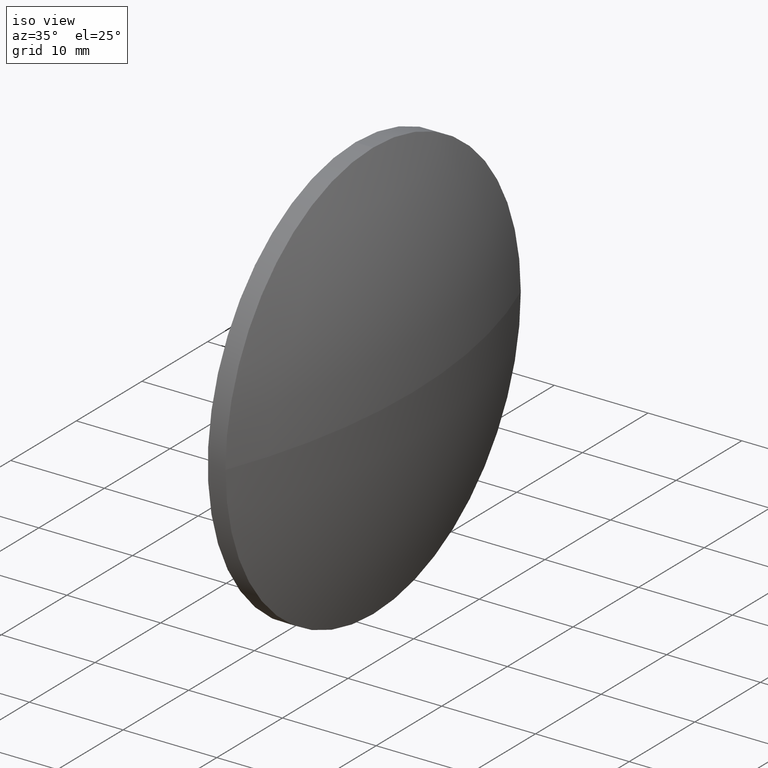
[diagram: clean part render]
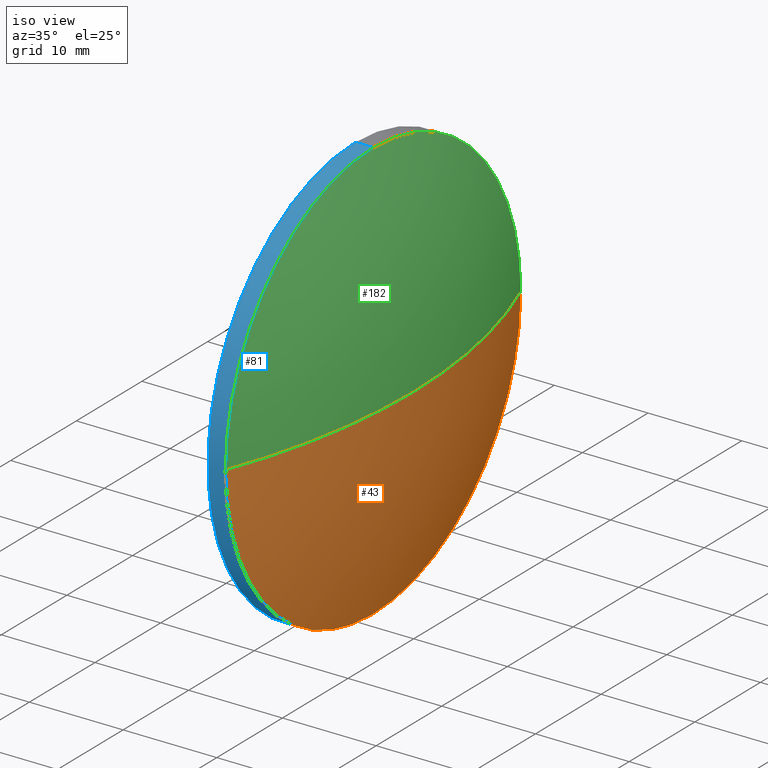
[diagram: same view with three faces highlighted in distinct colors, each labeled with its STEP entity id]
A machine part, iso view with three faces highlighted in distinct colors.
Their STEP definitions:

[orange] entity #43 — the highlighted spherical surface has radius 62.2297 mm.
#1 = ORIENTED_EDGE ( 'NONE', *, *, #91, .T. ) ;
#4 = ORIENTED_EDGE ( 'NONE', *, *, #173, .F. ) ;
#7 = CARTESIAN_POINT ( 'NONE',  ( 449.5635203188954800, 60.46347484045995900, 0.0000000000000000000 ) ) ;
#8 = AXIS2_PLACEMENT_3D ( 'NONE', #34, #104, #11 ) ;
#11 = DIRECTION ( 'NONE',  ( 1.000000000000000000, 0.0000000000000000000, 0.0000000000000000000 ) ) ;
#21 = CARTESIAN_POINT ( 'NONE',  ( 387.3338172310093900, 60.46347484045995200, 0.0000000000000000000 ) ) ;
#34 = CARTESIAN_POINT ( 'NONE',  ( 387.3338172310093900, 60.46347484045995200, 0.0000000000000000000 ) ) ;
#40 = DIRECTION ( 'NONE',  ( 0.0000000000000000000, 1.224646799147353200E-016, -1.000000000000000000 ) ) ;
#42 = CARTESIAN_POINT ( 'NONE',  ( 387.3338172310093900, 60.46347484045995200, 0.0000000000000000000 ) ) ;
#43 = ADVANCED_FACE ( 'NONE', ( #111 ), #65, .T. ) ;
#48 = AXIS2_PLACEMENT_3D ( 'NONE', #42, #40, #153 ) ;
#51 = CIRCLE ( 'NONE', #48, 62.22970308788607200 ) ;
#54 = EDGE_LOOP ( 'NONE', ( #4, #1, #76, #126 ) ) ;
#61 = DIRECTION ( 'NONE',  ( -0.0000000000000000000, 0.0000000000000000000, -1.000000000000000000 ) ) ;
#65 = SPHERICAL_SURFACE ( 'NONE', #121, 62.22970308788606500 ) ;
#66 = CARTESIAN_POINT ( 'NONE',  ( 445.3535203188954500, 60.46347484045998000, 0.0000000000000000000 ) ) ;
#69 = CARTESIAN_POINT ( 'NONE',  ( 445.3535203188954500, 60.46347484045998000, 0.0000000000000000000 ) ) ;
#76 = ORIENTED_EDGE ( 'NONE', *, *, #138, .F. ) ;
#78 = CARTESIAN_POINT ( 'NONE',  ( 445.3535203188954500, 37.96347484045995900, -2.755455298081544000E-015 ) ) ;
#83 = VERTEX_POINT ( 'NONE', #176 ) ;
#85 = DIRECTION ( 'NONE',  ( 0.0000000000000000000, 0.0000000000000000000, 1.000000000000000000 ) ) ;
#91 = EDGE_CURVE ( 'NONE', #92, #105, #51, .T. ) ;
#92 = VERTEX_POINT ( 'NONE', #7 ) ;
#103 = CIRCLE ( 'NONE', #131, 22.50000000000000700 ) ;
#104 = DIRECTION ( 'NONE',  ( -0.0000000000000000000, 0.0000000000000000000, 1.000000000000000000 ) ) ;
#105 = VERTEX_POINT ( 'NONE', #78 ) ;
#111 = FACE_OUTER_BOUND ( 'NONE', #54, .T. ) ;
#113 = CARTESIAN_POINT ( 'NONE',  ( 445.3535203188954500, 60.46347484045998000, -22.50000000000000700 ) ) ;
#119 = VERTEX_POINT ( 'NONE', #113 ) ;
#121 = AXIS2_PLACEMENT_3D ( 'NONE', #21, #61, #123 ) ;
#123 = DIRECTION ( 'NONE',  ( 0.0000000000000000000, 1.000000000000000000, 0.0000000000000000000 ) ) ;
#126 = ORIENTED_EDGE ( 'NONE', *, *, #161, .F. ) ;
#127 = AXIS2_PLACEMENT_3D ( 'NONE', #66, #164, #85 ) ;
#131 = AXIS2_PLACEMENT_3D ( 'NONE', #69, #167, #143 ) ;
#134 = CIRCLE ( 'NONE', #127, 22.50000000000000700 ) ;
#138 = EDGE_CURVE ( 'NONE', #119, #105, #103, .T. ) ;
#143 = DIRECTION ( 'NONE',  ( 0.0000000000000000000, 0.0000000000000000000, 1.000000000000000000 ) ) ;
#153 = DIRECTION ( 'NONE',  ( 0.0000000000000000000, 1.000000000000000000, 1.224646799147353000E-016 ) ) ;
#154 = CIRCLE ( 'NONE', #8, 62.22970308788605800 ) ;
#161 = EDGE_CURVE ( 'NONE', #83, #119, #134, .T. ) ;
#164 = DIRECTION ( 'NONE',  ( -1.000000000000000000, -0.0000000000000000000, -0.0000000000000000000 ) ) ;
#167 = DIRECTION ( 'NONE',  ( -1.000000000000000000, -0.0000000000000000000, -0.0000000000000000000 ) ) ;
#173 = EDGE_CURVE ( 'NONE', #92, #83, #154, .T. ) ;
#176 = CARTESIAN_POINT ( 'NONE',  ( 445.3535203188954500, 82.96347484045998000, 0.0000000000000000000 ) ) ;

[blue] entity #81 — the highlighted cylindrical surface (partial cylindrical patch) has radius 22.5 mm, axis along (-1, -0, -0).
#6 = CARTESIAN_POINT ( 'NONE',  ( 443.4635203188954600, 60.46347484045998000, 22.50000000000000700 ) ) ;
#12 = AXIS2_PLACEMENT_3D ( 'NONE', #96, #124, #112 ) ;
#13 = VERTEX_POINT ( 'NONE', #6 ) ;
#19 = ORIENTED_EDGE ( 'NONE', *, *, #38, .T. ) ;
#22 = DIRECTION ( 'NONE',  ( -1.000000000000000000, -0.0000000000000000000, -0.0000000000000000000 ) ) ;
#28 = VECTOR ( 'NONE', #22, 1000.000000000000000 ) ;
#29 = EDGE_LOOP ( 'NONE', ( #110, #36, #37, #19, #185 ) ) ;
#30 = DIRECTION ( 'NONE',  ( 0.0000000000000000000, 0.0000000000000000000, 1.000000000000000000 ) ) ;
#36 = ORIENTED_EDGE ( 'NONE', *, *, #138, .T. ) ;
#37 = ORIENTED_EDGE ( 'NONE', *, *, #158, .T. ) ;
#38 = EDGE_CURVE ( 'NONE', #95, #13, #71, .T. ) ;
#45 = CARTESIAN_POINT ( 'NONE',  ( 445.3535203188954500, 60.46347484045998000, 22.50000000000000700 ) ) ;
#47 = DIRECTION ( 'NONE',  ( -1.000000000000000000, -0.0000000000000000000, -0.0000000000000000000 ) ) ;
#64 = CARTESIAN_POINT ( 'NONE',  ( 443.4635203188954600, 60.46347484045998000, 0.0000000000000000000 ) ) ;
#69 = CARTESIAN_POINT ( 'NONE',  ( 445.3535203188954500, 60.46347484045998000, 0.0000000000000000000 ) ) ;
#71 = LINE ( 'NONE', #115, #28 ) ;
#78 = CARTESIAN_POINT ( 'NONE',  ( 445.3535203188954500, 37.96347484045995900, -2.755455298081544000E-015 ) ) ;
#81 = ADVANCED_FACE ( 'NONE', ( #114 ), #168, .T. ) ;
#84 = AXIS2_PLACEMENT_3D ( 'NONE', #64, #100, #30 ) ;
#86 = VECTOR ( 'NONE', #47, 1000.000000000000000 ) ;
#87 = DIRECTION ( 'NONE',  ( 0.0000000000000000000, 0.0000000000000000000, 1.000000000000000000 ) ) ;
#95 = VERTEX_POINT ( 'NONE', #45 ) ;
#96 = CARTESIAN_POINT ( 'NONE',  ( 434.0287404337423700, 60.46347484045998000, 0.0000000000000000000 ) ) ;
#97 = CIRCLE ( 'NONE', #84, 22.50000000000000700 ) ;
#100 = DIRECTION ( 'NONE',  ( -1.000000000000000000, -0.0000000000000000000, -0.0000000000000000000 ) ) ;
#103 = CIRCLE ( 'NONE', #131, 22.50000000000000700 ) ;
#105 = VERTEX_POINT ( 'NONE', #78 ) ;
#107 = CIRCLE ( 'NONE', #142, 22.50000000000000700 ) ;
#110 = ORIENTED_EDGE ( 'NONE', *, *, #135, .F. ) ;
#112 = DIRECTION ( 'NONE',  ( 0.0000000000000000000, 0.0000000000000000000, 1.000000000000000000 ) ) ;
#113 = CARTESIAN_POINT ( 'NONE',  ( 445.3535203188954500, 60.46347484045998000, -22.50000000000000700 ) ) ;
#114 = FACE_OUTER_BOUND ( 'NONE', #29, .T. ) ;
#115 = CARTESIAN_POINT ( 'NONE',  ( 434.0287404337423700, 60.46347484045998000, 22.50000000000000700 ) ) ;
#117 = CARTESIAN_POINT ( 'NONE',  ( 445.3535203188954500, 60.46347484045998000, 0.0000000000000000000 ) ) ;
#119 = VERTEX_POINT ( 'NONE', #113 ) ;
#120 = VERTEX_POINT ( 'NONE', #162 ) ;
#124 = DIRECTION ( 'NONE',  ( -1.000000000000000000, -0.0000000000000000000, -0.0000000000000000000 ) ) ;
#125 = EDGE_CURVE ( 'NONE', #120, #13, #97, .T. ) ;
#131 = AXIS2_PLACEMENT_3D ( 'NONE', #69, #167, #143 ) ;
#135 = EDGE_CURVE ( 'NONE', #119, #120, #179, .T. ) ;
#138 = EDGE_CURVE ( 'NONE', #119, #105, #103, .T. ) ;
#142 = AXIS2_PLACEMENT_3D ( 'NONE', #117, #145, #87 ) ;
#143 = DIRECTION ( 'NONE',  ( 0.0000000000000000000, 0.0000000000000000000, 1.000000000000000000 ) ) ;
#145 = DIRECTION ( 'NONE',  ( -1.000000000000000000, -0.0000000000000000000, -0.0000000000000000000 ) ) ;
#158 = EDGE_CURVE ( 'NONE', #105, #95, #107, .T. ) ;
#162 = CARTESIAN_POINT ( 'NONE',  ( 443.4635203188954600, 60.46347484045998000, -22.50000000000000700 ) ) ;
#167 = DIRECTION ( 'NONE',  ( -1.000000000000000000, -0.0000000000000000000, -0.0000000000000000000 ) ) ;
#168 = CYLINDRICAL_SURFACE ( 'NONE', #12, 22.50000000000000700 ) ;
#178 = CARTESIAN_POINT ( 'NONE',  ( 434.0287404337423700, 60.46347484045998000, -22.50000000000000700 ) ) ;
#179 = LINE ( 'NONE', #178, #86 ) ;
#185 = ORIENTED_EDGE ( 'NONE', *, *, #125, .F. ) ;

[green] entity #182 — the highlighted spherical surface has radius 62.2297 mm.
#7 = CARTESIAN_POINT ( 'NONE',  ( 449.5635203188954800, 60.46347484045995900, 0.0000000000000000000 ) ) ;
#8 = AXIS2_PLACEMENT_3D ( 'NONE', #34, #104, #11 ) ;
#10 = EDGE_LOOP ( 'NONE', ( #122, #166, #18, #79 ) ) ;
#11 = DIRECTION ( 'NONE',  ( 1.000000000000000000, 0.0000000000000000000, 0.0000000000000000000 ) ) ;
#14 = DIRECTION ( 'NONE',  ( 0.0000000000000000000, 1.000000000000000000, 0.0000000000000000000 ) ) ;
#18 = ORIENTED_EDGE ( 'NONE', *, *, #94, .F. ) ;
#20 = AXIS2_PLACEMENT_3D ( 'NONE', #67, #89, #14 ) ;
#34 = CARTESIAN_POINT ( 'NONE',  ( 387.3338172310093900, 60.46347484045995200, 0.0000000000000000000 ) ) ;
#40 = DIRECTION ( 'NONE',  ( 0.0000000000000000000, 1.224646799147353200E-016, -1.000000000000000000 ) ) ;
#41 = CARTESIAN_POINT ( 'NONE',  ( 445.3535203188954500, 60.46347484045998000, 0.0000000000000000000 ) ) ;
#42 = CARTESIAN_POINT ( 'NONE',  ( 387.3338172310093900, 60.46347484045995200, 0.0000000000000000000 ) ) ;
#45 = CARTESIAN_POINT ( 'NONE',  ( 445.3535203188954500, 60.46347484045998000, 22.50000000000000700 ) ) ;
#48 = AXIS2_PLACEMENT_3D ( 'NONE', #42, #40, #153 ) ;
#51 = CIRCLE ( 'NONE', #48, 62.22970308788607200 ) ;
#52 = SPHERICAL_SURFACE ( 'NONE', #20, 62.22970308788606500 ) ;
#57 = AXIS2_PLACEMENT_3D ( 'NONE', #41, #63, #59 ) ;
#59 = DIRECTION ( 'NONE',  ( 0.0000000000000000000, 0.0000000000000000000, 1.000000000000000000 ) ) ;
#62 = CIRCLE ( 'NONE', #57, 22.50000000000000700 ) ;
#63 = DIRECTION ( 'NONE',  ( -1.000000000000000000, -0.0000000000000000000, -0.0000000000000000000 ) ) ;
#67 = CARTESIAN_POINT ( 'NONE',  ( 387.3338172310093900, 60.46347484045995200, 0.0000000000000000000 ) ) ;
#77 = FACE_OUTER_BOUND ( 'NONE', #10, .T. ) ;
#78 = CARTESIAN_POINT ( 'NONE',  ( 445.3535203188954500, 37.96347484045995900, -2.755455298081544000E-015 ) ) ;
#79 = ORIENTED_EDGE ( 'NONE', *, *, #158, .F. ) ;
#83 = VERTEX_POINT ( 'NONE', #176 ) ;
#87 = DIRECTION ( 'NONE',  ( 0.0000000000000000000, 0.0000000000000000000, 1.000000000000000000 ) ) ;
#89 = DIRECTION ( 'NONE',  ( -0.0000000000000000000, 0.0000000000000000000, -1.000000000000000000 ) ) ;
#91 = EDGE_CURVE ( 'NONE', #92, #105, #51, .T. ) ;
#92 = VERTEX_POINT ( 'NONE', #7 ) ;
#94 = EDGE_CURVE ( 'NONE', #95, #83, #62, .T. ) ;
#95 = VERTEX_POINT ( 'NONE', #45 ) ;
#104 = DIRECTION ( 'NONE',  ( -0.0000000000000000000, 0.0000000000000000000, 1.000000000000000000 ) ) ;
#105 = VERTEX_POINT ( 'NONE', #78 ) ;
#107 = CIRCLE ( 'NONE', #142, 22.50000000000000700 ) ;
#117 = CARTESIAN_POINT ( 'NONE',  ( 445.3535203188954500, 60.46347484045998000, 0.0000000000000000000 ) ) ;
#122 = ORIENTED_EDGE ( 'NONE', *, *, #91, .F. ) ;
#142 = AXIS2_PLACEMENT_3D ( 'NONE', #117, #145, #87 ) ;
#145 = DIRECTION ( 'NONE',  ( -1.000000000000000000, -0.0000000000000000000, -0.0000000000000000000 ) ) ;
#153 = DIRECTION ( 'NONE',  ( 0.0000000000000000000, 1.000000000000000000, 1.224646799147353000E-016 ) ) ;
#154 = CIRCLE ( 'NONE', #8, 62.22970308788605800 ) ;
#158 = EDGE_CURVE ( 'NONE', #105, #95, #107, .T. ) ;
#166 = ORIENTED_EDGE ( 'NONE', *, *, #173, .T. ) ;
#173 = EDGE_CURVE ( 'NONE', #92, #83, #154, .T. ) ;
#176 = CARTESIAN_POINT ( 'NONE',  ( 445.3535203188954500, 82.96347484045998000, 0.0000000000000000000 ) ) ;
#182 = ADVANCED_FACE ( 'NONE', ( #77 ), #52, .T. ) ;